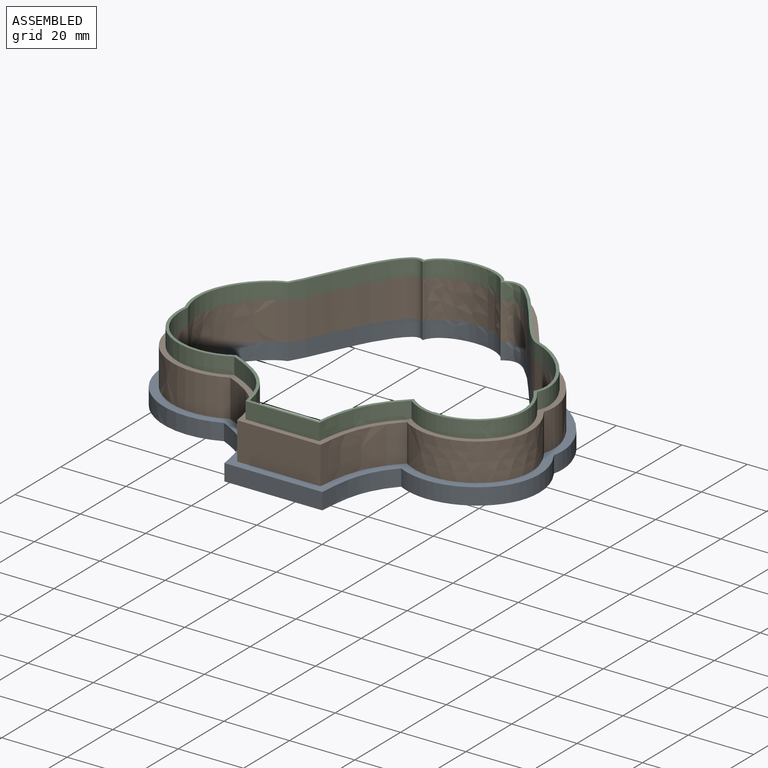
[diagram: assembled view]
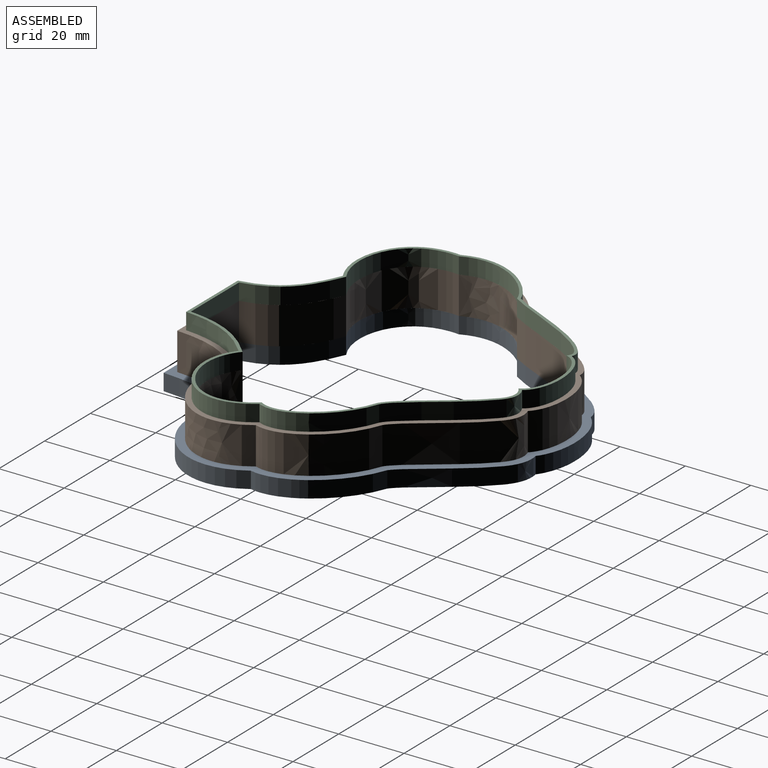
[diagram: assembled view, second angle]
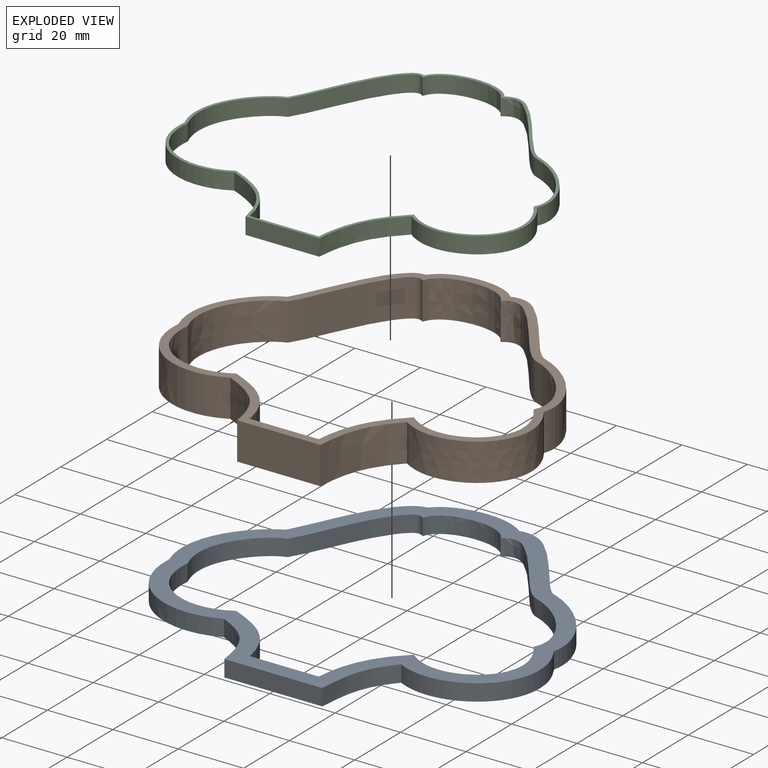
[diagram: exploded view]
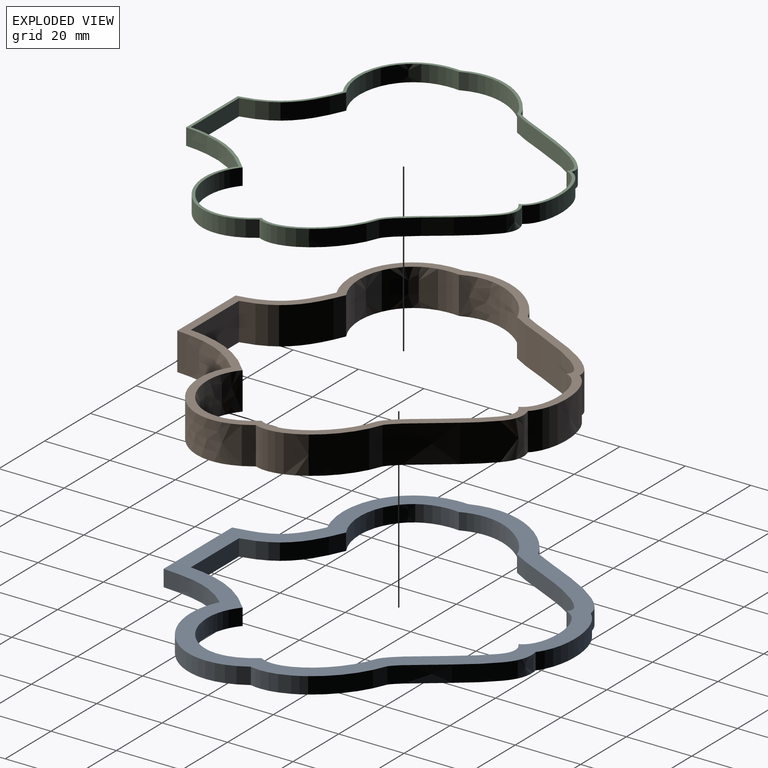
[diagram: exploded view, second angle]
ASSEMBLY  parts=3 mates=2
PART A: 26 faces, bbox 115.5x108.6x5.4 mm
  f0: plane 115.53x108.59mm, normal (0,0,1), area 1754.4mm2, adj f2,f3,f4,f5,f6,f7,f8,f9
  f1: plane 115.53x108.59mm, normal (0,0,-1), area 1754.4mm2, adj f2,f3,f4,f5,f6,f7,f8,f9
  f2: extruded ~5.08x4mm, area 22mm2, adj f0,f1,f3,f13
  f3: extruded ~29.47x17.49mm, area 175.2mm2, adj f0,f1,f2,f4
  f4: extruded ~31.2x15.32mm, area 189.5mm2, adj f0,f1,f3,f5
  f5: extruded ~31.58x23.17mm, area 233.7mm2, adj f0,f1,f4,f6
  f6: extruded ~19.47x13.76mm, area 128.8mm2, adj f0,f1,f5,f7
  f7: plane 29.93x5.08mm, normal (0,-1,0), area 152mm2, adj f0,f1,f6,f8
  f8: extruded ~22.87x8.12mm, area 126.7mm2, adj f0,f1,f7,f9
  f9: extruded ~30.62x30.42mm, area 271.4mm2, adj f0,f1,f8,f10
  f10: extruded ~27.83x20.22mm, area 187.3mm2, adj f0,f1,f9,f11
  f11: extruded ~22.32x18.45mm, area 147.4mm2, adj f0,f1,f10,f12
  f12: extruded ~9.8x5.08mm, area 54.8mm2, adj f0,f1,f11,f13
  f13: extruded ~26.7x5.41mm, area 146.6mm2, adj f0,f1,f2,f12
  f14: extruded ~5.08x3.41mm, area 19mm2, adj f0,f1,f15,f25
  f15: extruded ~29.52x17.12mm, area 174.5mm2, adj f0,f1,f14,f16
  f16: extruded ~26.31x13.67mm, area 163.5mm2, adj f0,f1,f15,f17
  f17: extruded ~26.31x18.86mm, area 197.2mm2, adj f0,f1,f16,f18
  f18: extruded ~20.03x18.18mm, area 144.7mm2, adj f0,f1,f17,f19
  f19: plane 21.05x5.08mm, normal (0,1,0), area 106.9mm2, adj f0,f1,f18,f20
  f20: extruded ~24.32x12.13mm, area 141.8mm2, adj f0,f1,f19,f21
  f21: extruded ~25.98x24.83mm, area 234.8mm2, adj f0,f1,f20,f22
  f22: extruded ~23.92x17.37mm, area 162.8mm2, adj f0,f1,f21,f23
  f23: extruded ~23.18x19.66mm, area 155mm2, adj f0,f1,f22,f24
  f24: extruded ~7.7x5.08mm, area 44mm2, adj f0,f1,f23,f25
  f25: extruded ~22.91x6.04mm, area 136mm2, adj f0,f1,f14,f24
PART B: 26 faces, bbox 111.4x103.5x11.8 mm
  f0: plane 111.39x103.55mm, normal (0,0,1), area 857.4mm2, adj f2,f3,f4,f5,f6,f7,f8,f9
  f1: plane 111.39x103.55mm, normal (0,0,-1), area 857.4mm2, adj f2,f3,f4,f5,f6,f7,f8,f9
  f2: extruded ~11.43x3.71mm, area 45.6mm2, adj f0,f1,f3,f13
  f3: extruded ~29.45x17.26mm, area 393mm2, adj f0,f1,f2,f4
  f4: extruded ~28.81x14.54mm, area 397.9mm2, adj f0,f1,f3,f5
  f5: extruded ~29x21.02mm, area 485.2mm2, adj f0,f1,f4,f6
  f6: extruded ~19.74x15.91mm, area 307.3mm2, adj f0,f1,f5,f7
  f7: plane 25.49x11.43mm, normal (0,-1,0), area 291.3mm2, adj f0,f1,f6,f8
  f8: extruded ~23.54x11.43mm, area 300mm2, adj f0,f1,f7,f9
  f9: extruded ~28.33x27.66mm, area 569.2mm2, adj f0,f1,f8,f10
  f10: extruded ~25.96x18.84mm, area 394.7mm2, adj f0,f1,f9,f11
  f11: extruded ~22.74x19.01mm, area 339.7mm2, adj f0,f1,f10,f12
  f12: extruded ~11.43x8.71mm, area 109.4mm2, adj f0,f1,f11,f13
  f13: extruded ~24.84x11.43mm, area 312.4mm2, adj f0,f1,f2,f12
  f14: extruded ~11.43x3.41mm, area 42.8mm2, adj f0,f1,f15,f25
  f15: extruded ~29.52x17.12mm, area 392.6mm2, adj f0,f1,f14,f16
  f16: extruded ~26.31x13.67mm, area 367.9mm2, adj f0,f1,f15,f17
  f17: extruded ~26.31x18.86mm, area 443.6mm2, adj f0,f1,f16,f18
  f18: extruded ~20.03x18.18mm, area 325.6mm2, adj f0,f1,f17,f19
  f19: plane 21.05x11.43mm, normal (0,1,0), area 240.6mm2, adj f0,f1,f18,f20
  f20: extruded ~24.32x12.13mm, area 319.1mm2, adj f0,f1,f19,f21
  f21: extruded ~25.98x24.83mm, area 528.4mm2, adj f0,f1,f20,f22
  f22: extruded ~23.92x17.37mm, area 366.3mm2, adj f0,f1,f21,f23
  f23: extruded ~23.18x19.66mm, area 348.7mm2, adj f0,f1,f22,f24
  f24: extruded ~11.43x7.7mm, area 99mm2, adj f0,f1,f23,f25
  f25: extruded ~22.91x11.43mm, area 306.1mm2, adj f0,f1,f14,f24
PART C: 26 faces, bbox 111x101.4x5.9 mm
  f0: plane 110.98x101.37mm, normal (0,0,1), area 295.5mm2, adj f2,f3,f4,f5,f6,f7,f8,f9
  f1: plane 110.98x101.37mm, normal (0,0,-1), area 295.5mm2, adj f2,f3,f4,f5,f6,f7,f8,f9
  f2: extruded ~5.08x3.51mm, area 19mm2, adj f0,f1,f3,f13
  f3: extruded ~29.48x17.15mm, area 174.4mm2, adj f0,f1,f2,f4
  f4: extruded ~27.2x13.99mm, area 168.3mm2, adj f0,f1,f3,f5
  f5: extruded ~27.26x19.62mm, area 203.7mm2, adj f0,f1,f4,f6
  f6: extruded ~19.93x17.37mm, area 141.7mm2, adj f0,f1,f5,f7
  f7: plane 22.61x5.08mm, normal (0,-1,0), area 114.8mm2, adj f0,f1,f6,f8
  f8: extruded ~24.03x11.35mm, area 138.7mm2, adj f0,f1,f7,f9
  f9: extruded ~26.83x25.8mm, area 241.1mm2, adj f0,f1,f8,f10
  f10: extruded ~24.66x17.89mm, area 167.3mm2, adj f0,f1,f9,f11
  f11: extruded ~23.02x19.43mm, area 153.5mm2, adj f0,f1,f10,f12
  f12: extruded ~8.02x5.08mm, area 45.1mm2, adj f0,f1,f11,f13
  f13: extruded ~23.63x5.61mm, area 135.7mm2, adj f0,f1,f2,f12
  f14: extruded ~5.08x3.41mm, area 19mm2, adj f0,f1,f15,f25
  f15: extruded ~29.52x17.12mm, area 174.5mm2, adj f0,f1,f14,f16
  f16: extruded ~26.31x13.67mm, area 163.5mm2, adj f0,f1,f15,f17
  f17: extruded ~26.31x18.86mm, area 197.2mm2, adj f0,f1,f16,f18
  f18: extruded ~20.03x18.18mm, area 144.7mm2, adj f0,f1,f17,f19
  f19: plane 21.05x5.08mm, normal (0,1,0), area 106.9mm2, adj f0,f1,f18,f20
  f20: extruded ~24.32x12.13mm, area 141.8mm2, adj f0,f1,f19,f21
  f21: extruded ~25.98x24.83mm, area 234.8mm2, adj f0,f1,f20,f22
  f22: extruded ~23.92x17.37mm, area 162.8mm2, adj f0,f1,f21,f23
  f23: extruded ~23.18x19.66mm, area 155mm2, adj f0,f1,f22,f24
  f24: extruded ~7.7x5.08mm, area 44mm2, adj f0,f1,f23,f25
  f25: extruded ~22.91x6.04mm, area 136mm2, adj f0,f1,f14,f24
PLACE A at identity
PLACE B t=(232.17,9.04,5.08)mm
PLACE C t=(116.6,-19.87,16.51)mm
MATE fastened B.f1 <-> A.f0  axis (0,0,1) through (80.23,4.69,5.08)mm
MATE fastened C.f1 <-> B.f0  axis (0,0,1) through (80.23,4.69,16.51)mm
